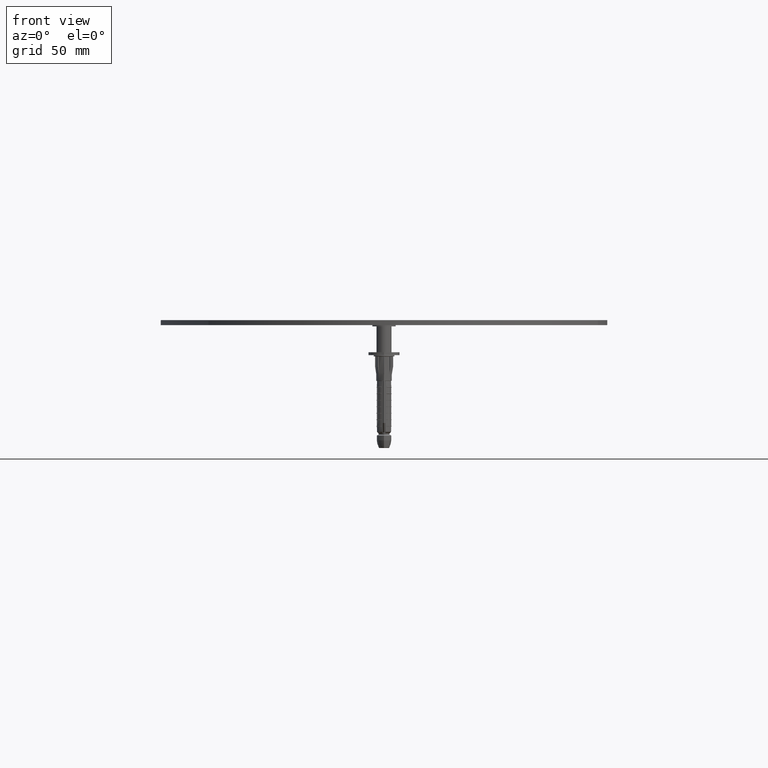
[diagram: clean part render]
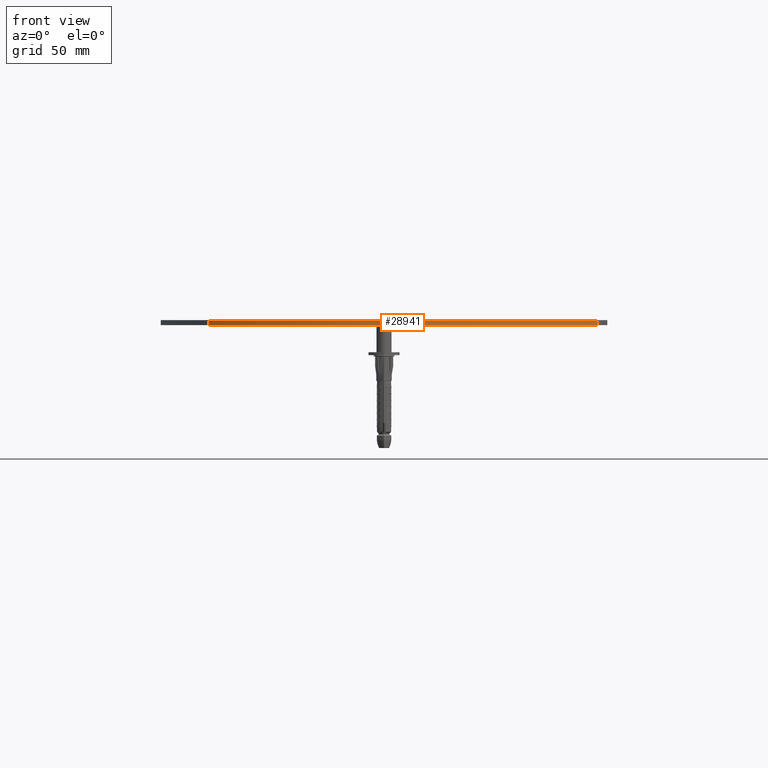
[diagram: same view with one face highlighted and labeled with its STEP entity id]
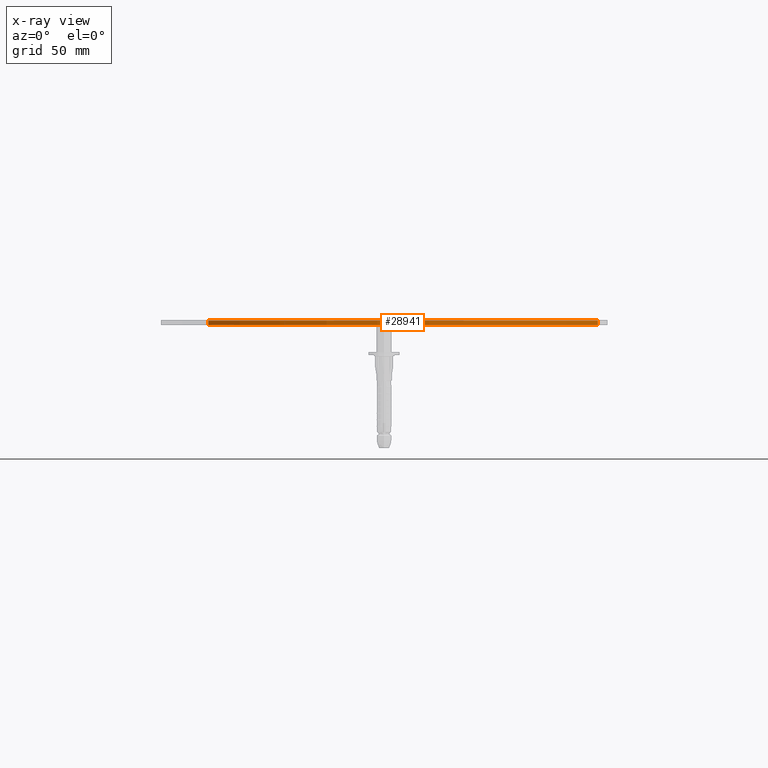
[diagram: x-ray of the same camera — body ghosted, the highlighted face saturated]
A machine part, front view. The second image highlights one B-rep face of the part: STEP entity #28941.
The next image is the same camera in x-ray: the body ghosted, the highlighted face saturated — about 0% of this face is hidden behind the body in this view.
In plain terms, the highlighted cylindrical surface (partial cylindrical patch) has radius 87.7691 mm, axis along (-0, -0, -1).
Its self-contained STEP definition (entity closure, byte-faithful):
#542 = ORIENTED_EDGE ( 'NONE', *, *, #8632, .T. ) ;
#1198 = AXIS2_PLACEMENT_3D ( 'NONE', #13781, #31146, #13922 ) ;
#2088 = AXIS2_PLACEMENT_3D ( 'NONE', #26986, #21298, #12848 ) ;
#3825 = CARTESIAN_POINT ( 'NONE',  ( 75.44167711727567394, 42.91411000698106903, 2.000000000000000000 ) ) ;
#4542 = CARTESIAN_POINT ( 'NONE',  ( -75.44167711727573078, 42.91411000698112588, 0.000000000000000000 ) ) ;
#5120 = VECTOR ( 'NONE', #20298, 1000.000000000000000 ) ;
#6382 = ORIENTED_EDGE ( 'NONE', *, *, #28072, .T. ) ;
#6443 = AXIS2_PLACEMENT_3D ( 'NONE', #27309, #36063, #27198 ) ;
#6707 = VERTEX_POINT ( 'NONE', #17228 ) ;
#6811 = DIRECTION ( 'NONE',  ( -0.000000000000000000, -0.000000000000000000, -1.000000000000000000 ) ) ;
#7147 = CIRCLE ( 'NONE', #1198, 87.76912165640983687 ) ;
#8232 = EDGE_LOOP ( 'NONE', ( #12991, #6382, #16942, #542 ) ) ;
#8632 = EDGE_CURVE ( 'NONE', #20225, #24264, #24033, .T. ) ;
#11319 = CARTESIAN_POINT ( 'NONE',  ( -75.44167711727573078, 42.91411000698112588, 2.000000000000000000 ) ) ;
#12848 = DIRECTION ( 'NONE',  ( 1.000000000000000000, 0.000000000000000000, 0.000000000000000000 ) ) ;
#12991 = ORIENTED_EDGE ( 'NONE', *, *, #30355, .F. ) ;
#13781 = CARTESIAN_POINT ( 'NONE',  ( 6.869576908259014508E-23, 87.76912165640986530, 1.750000000000000000 ) ) ;
#13922 = DIRECTION ( 'NONE',  ( -1.000000000000000000, 0.000000000000000000, 0.000000000000000000 ) ) ;
#15257 = LINE ( 'NONE', #11319, #5120 ) ;
#16710 = VERTEX_POINT ( 'NONE', #24452 ) ;
#16942 = ORIENTED_EDGE ( 'NONE', *, *, #24277, .T. ) ;
#17228 = CARTESIAN_POINT ( 'NONE',  ( -75.44167711727573078, 42.91411000698112588, 1.750000000000000000 ) ) ;
#19920 = VECTOR ( 'NONE', #6811, 1000.000000000000000 ) ;
#20225 = VERTEX_POINT ( 'NONE', #4542 ) ;
#20298 = DIRECTION ( 'NONE',  ( -0.000000000000000000, -0.000000000000000000, -1.000000000000000000 ) ) ;
#20418 = CARTESIAN_POINT ( 'NONE',  ( 75.44167711727567394, 42.91411000698106903, 0.000000000000000000 ) ) ;
#21298 = DIRECTION ( 'NONE',  ( 0.000000000000000000, 0.000000000000000000, 1.000000000000000000 ) ) ;
#24033 = CIRCLE ( 'NONE', #2088, 87.76912165640983687 ) ;
#24264 = VERTEX_POINT ( 'NONE', #20418 ) ;
#24277 = EDGE_CURVE ( 'NONE', #6707, #20225, #15257, .T. ) ;
#24452 = CARTESIAN_POINT ( 'NONE',  ( 75.44167711727567394, 42.91411000698106903, 1.750000000000000000 ) ) ;
#24549 = CYLINDRICAL_SURFACE ( 'NONE', #6443, 87.76912165640983687 ) ;
#26986 = CARTESIAN_POINT ( 'NONE',  ( 6.869576908259014508E-23, 87.76912165640986530, 0.000000000000000000 ) ) ;
#27198 = DIRECTION ( 'NONE',  ( -1.000000000000000000, 0.000000000000000000, 0.000000000000000000 ) ) ;
#27309 = CARTESIAN_POINT ( 'NONE',  ( 6.869576908259014508E-23, 87.76912165640986530, 2.000000000000000000 ) ) ;
#28072 = EDGE_CURVE ( 'NONE', #16710, #6707, #7147, .T. ) ;
#28941 = ADVANCED_FACE ( 'NONE', ( #34249 ), #24549, .T. ) ;
#30355 = EDGE_CURVE ( 'NONE', #16710, #24264, #35593, .T. ) ;
#31146 = DIRECTION ( 'NONE',  ( -0.000000000000000000, -0.000000000000000000, -1.000000000000000000 ) ) ;
#34249 = FACE_OUTER_BOUND ( 'NONE', #8232, .T. ) ;
#35593 = LINE ( 'NONE', #3825, #19920 ) ;
#36063 = DIRECTION ( 'NONE',  ( -0.000000000000000000, -0.000000000000000000, -1.000000000000000000 ) ) ;